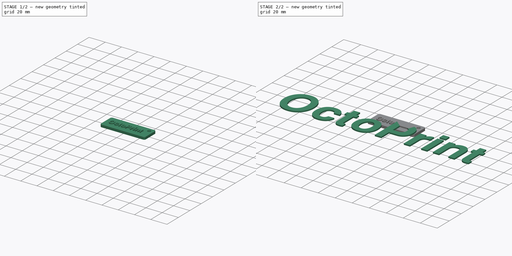
[diagram: build sequence overview — one tinted view per stage of 2, left to right]
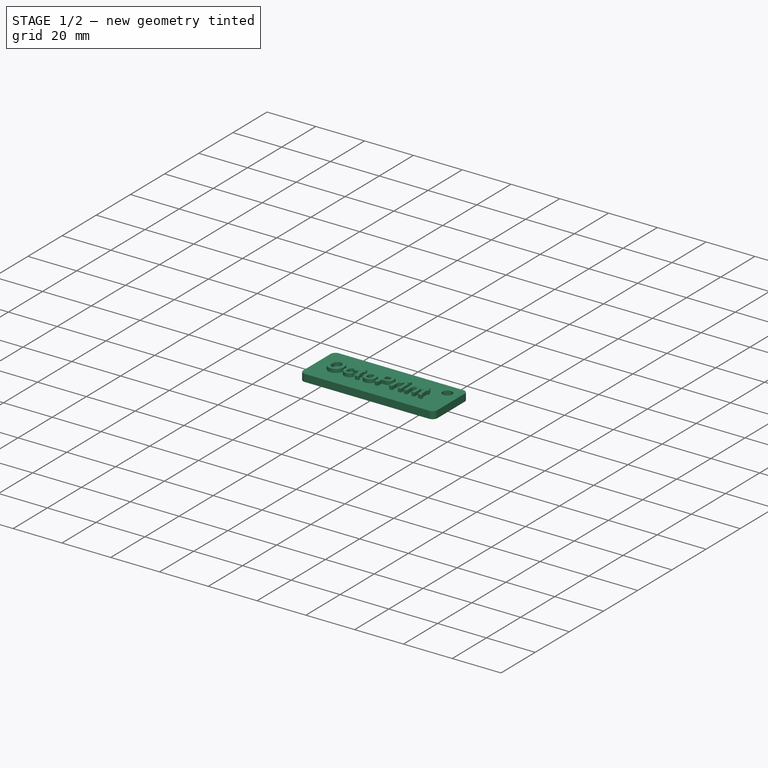
[diagram: stage 1 of 2 — iso view after this stage's code; geometry added in this stage tinted green]
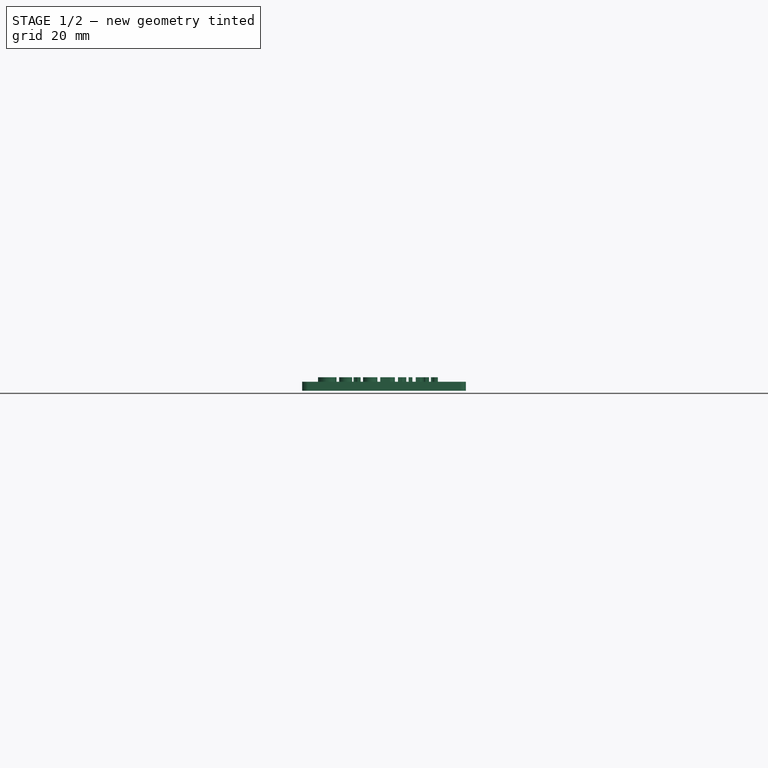
[diagram: stage 1 of 2 — front view after this stage's code; geometry added in this stage tinted green]
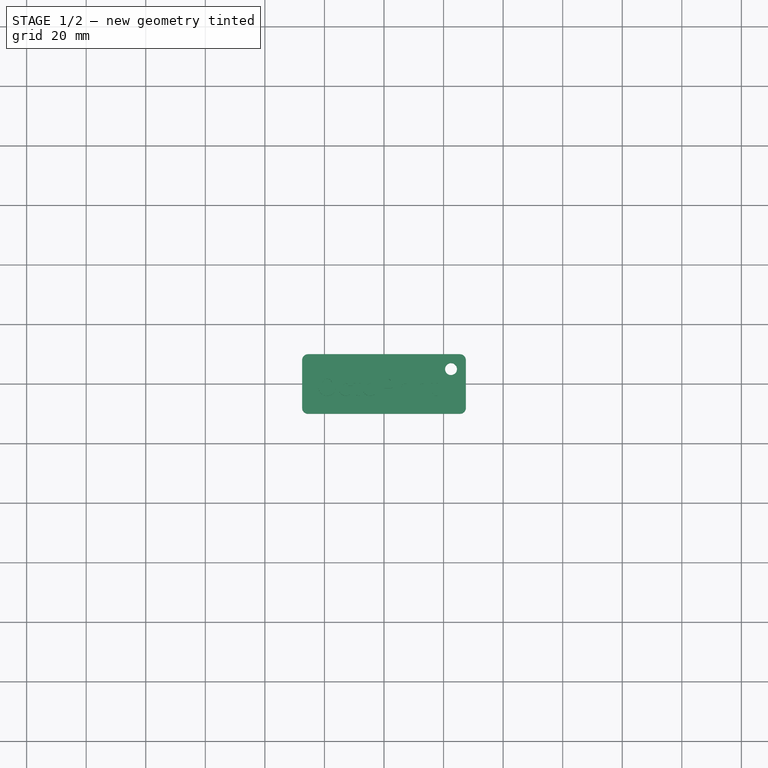
[diagram: stage 1 of 2 — top view after this stage's code; geometry added in this stage tinted green]
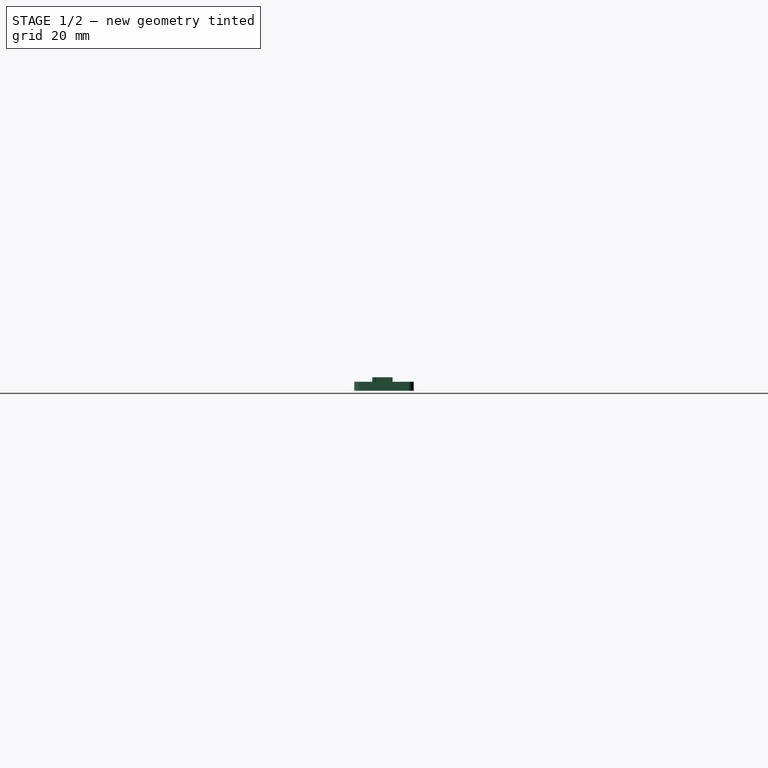
[diagram: stage 1 of 2 — right view after this stage's code; geometry added in this stage tinted green]
FCSTD DOCUMENT  (FreeCAD 0.15R4614 (Git))
Label: keychain_octoprint
License: CC-BY 3.0
LicenseURL: http://creativecommons.org/licenses/by/3.0/
objects: Sketcher::SketchObject×1, PartDesign::Pad×1, Part::Part2DObjectPython×1, Part::Extrusion×1, Part::FeaturePython×1, Part::MultiFuse×1
note: 7 computed .brp shape members not serialized (recipe doc carries the construction recipe); baked Part::Feature solids carry a one-line shape summary decoded from their .brp

FEATURE [Sketcher::SketchObject] Sketch
  sketch-geometry (9):
    g0: LineSegment StartX=-25.5 StartY=10 StartZ=0 EndX=25.5 EndY=10 EndZ=0
    g1: LineSegment StartX=27.5 StartY=8 StartZ=0 EndX=27.5 EndY=-8 EndZ=0
    g2: LineSegment StartX=25.5 StartY=-10 StartZ=0 EndX=-25.5 EndY=-10 EndZ=0
    g3: LineSegment StartX=-27.5 StartY=-8 StartZ=0 EndX=-27.5 EndY=8 EndZ=0
    g4: ArcOfCircle CenterX=-25.5 CenterY=8 CenterZ=0 NormalX=0 NormalY=0 NormalZ=1 Radius=2 StartAngle=1.5708 EndAngle=3.14159
    g5: ArcOfCircle CenterX=25.5 CenterY=8 CenterZ=0 NormalX=0 NormalY=0 NormalZ=1 Radius=2 StartAngle=0 EndAngle=1.5708
    g6: ArcOfCircle CenterX=25.5 CenterY=-8 CenterZ=0 NormalX=0 NormalY=0 NormalZ=1 Radius=2 StartAngle=4.71239 EndAngle=6.28319
    g7: ArcOfCircle CenterX=-25.5 CenterY=-8 CenterZ=0 NormalX=0 NormalY=0 NormalZ=1 Radius=2 StartAngle=3.14159 EndAngle=4.71239
    g8: Circle CenterX=22.5 CenterY=5 CenterZ=0 NormalX=0 NormalY=0 NormalZ=1 Radius=2
  constraints (22):
    c: Horizontal(g0)
    c: Horizontal(g2)
    c: Vertical(g1)
    c: Vertical(g3)
    c: Tangent(g0,g4)
    c: Tangent(g3,g4)
    c: Tangent(g0,g5)
    c: Tangent(g1,g5)
    c: Tangent(g1,g6)
    c: Tangent(g2,g6)
    c: Tangent(g2,g7)
    c: Tangent(g3,g7)
    c: Radius(g4) = 2
    c: Equal(g4,g7)
    c: Equal(g7,g6)
    c: Symmetric(g2,g0,g-1)
    c: Symmetric(g3,g1,g-2)
    c: DistanceX(g3,g1) = 55
    c: DistanceY(g0,g6) = -18
    c: Radius(g8) = 2
    c: DistanceY(g8,g0) = 5
    c: DistanceX(g8,g1) = 5
FEATURE [PartDesign::Pad] Pad
  Length = 3
  Length2 = 27.7
  Sketch = -> Sketch
  Type = 0
FEATURE [Part::FeaturePython] Scale002  label="octoprint-text-scaled"  # WARN: FeaturePython — macro-defined, semantics opaque (R4)
  Placement = pos=(-104.399,-50.7562,3) rot=(0,0,1;0rad)
  Scale = (0.7,0.7,1)
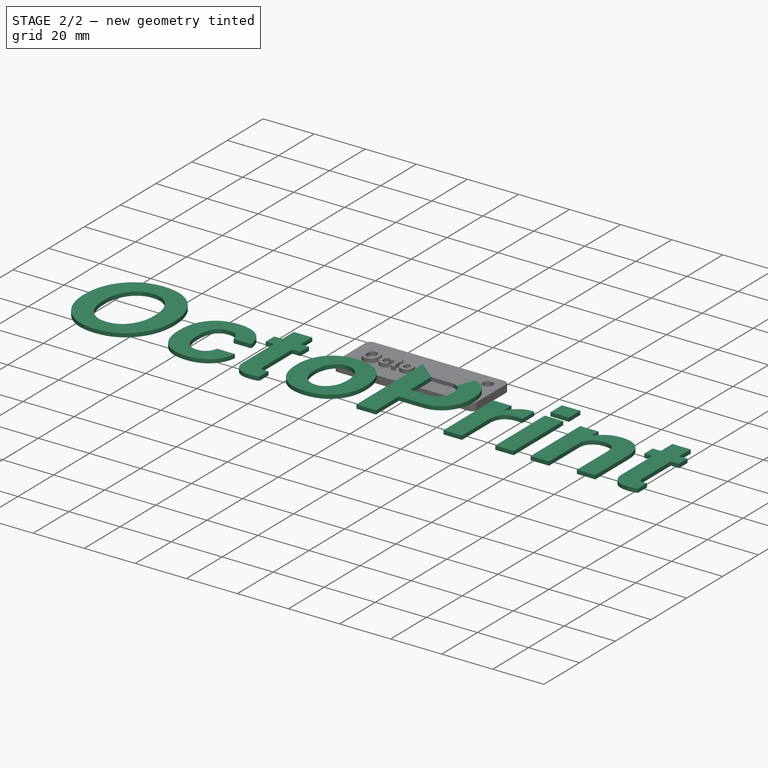
[diagram: stage 2 of 2 — iso view after this stage's code; geometry added in this stage tinted green]
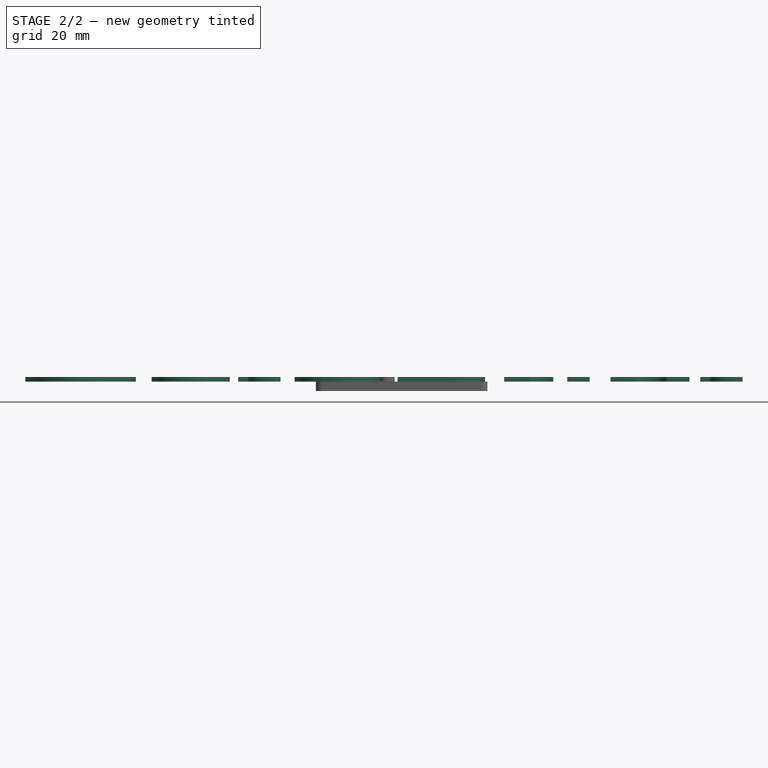
[diagram: stage 2 of 2 — front view after this stage's code; geometry added in this stage tinted green]
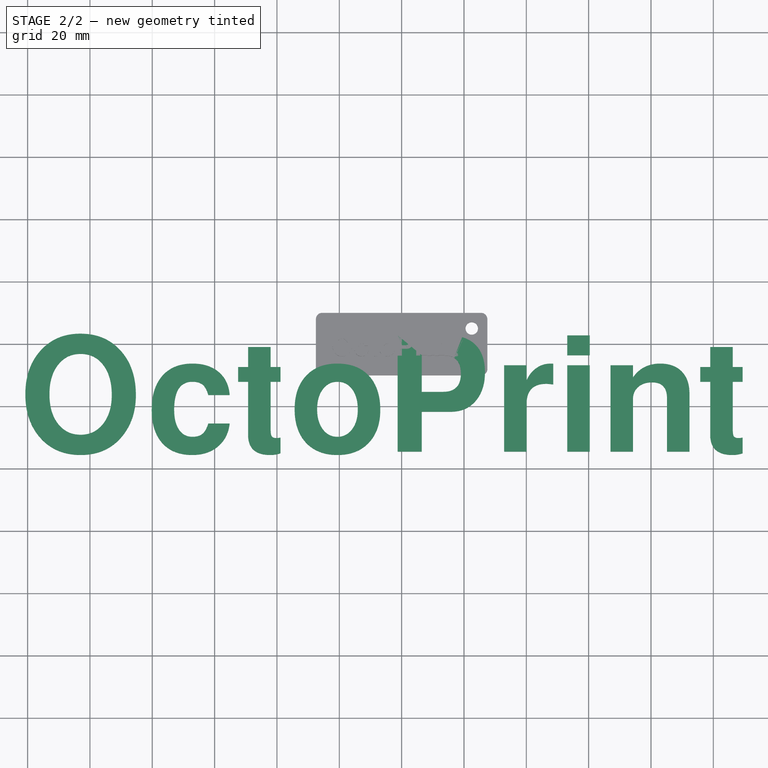
[diagram: stage 2 of 2 — top view after this stage's code; geometry added in this stage tinted green]
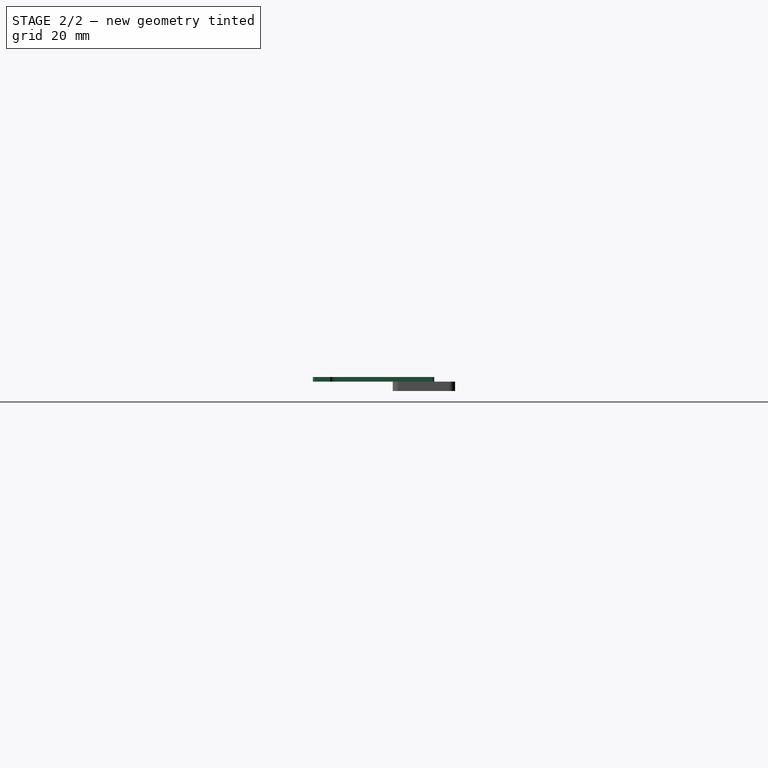
[diagram: stage 2 of 2 — right view after this stage's code; geometry added in this stage tinted green]
FEATURE [Part::Part2DObjectPython] ShapeString  # Draft 2D object (typed FeaturePython)
  FontFile = <path>
  Placement = pos=(-20.1102,19.7867,0) rot=(0,0,1;0rad)
  Size = 20
  String = OctoPrint
  Tracking = 0
FEATURE [Part::Extrusion] Extrude013  label="octoprint-text"
  Base = -> ShapeString
  Dir = (0,0,1.5)
  Placement = pos=(-102.755,-54.3531,3) rot=(0,0,1;0rad)
  Solid = true
FEATURE [Part::MultiFuse] Fusion  label="octoprint-keychain"
  Shapes = -> [Scale002,Pad]
note: 1 file-system path scrubbed to <path> (originals preserved in the JSON sidecar)
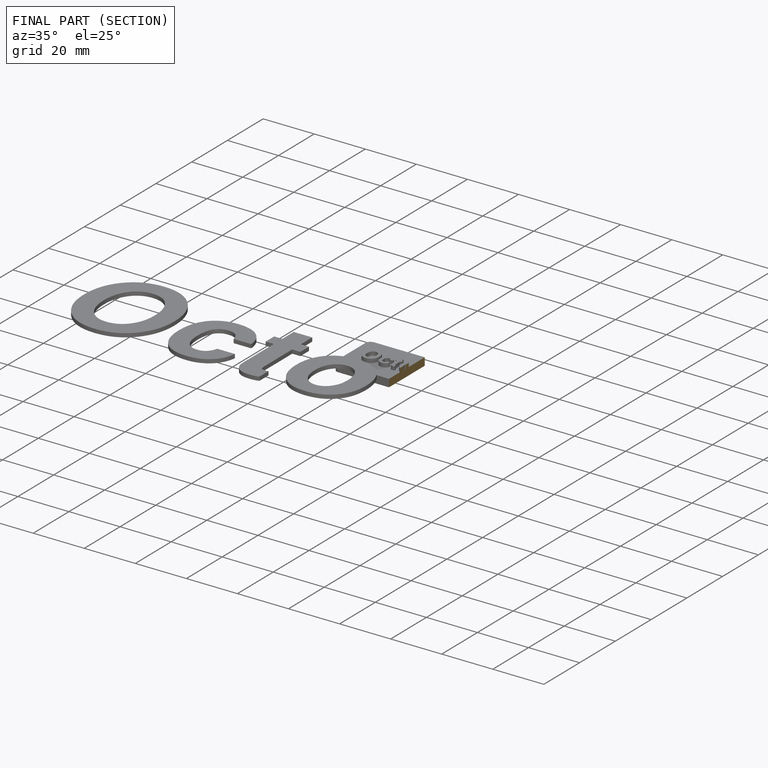
[diagram: finished part — half-section view (interior)]
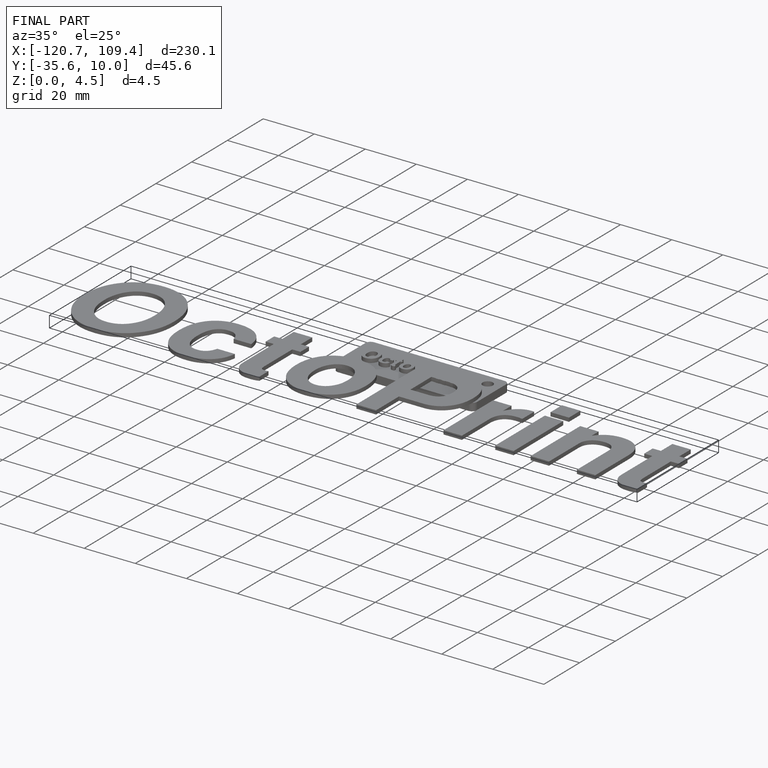
[diagram: finished part — iso view with bounding-box wireframe]
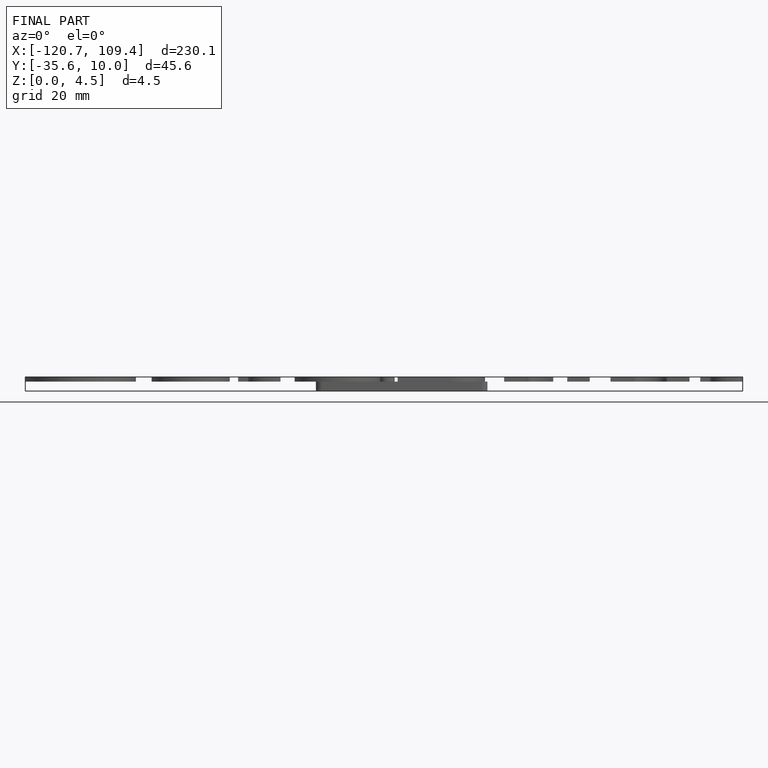
[diagram: finished part — front view with bounding-box wireframe]
